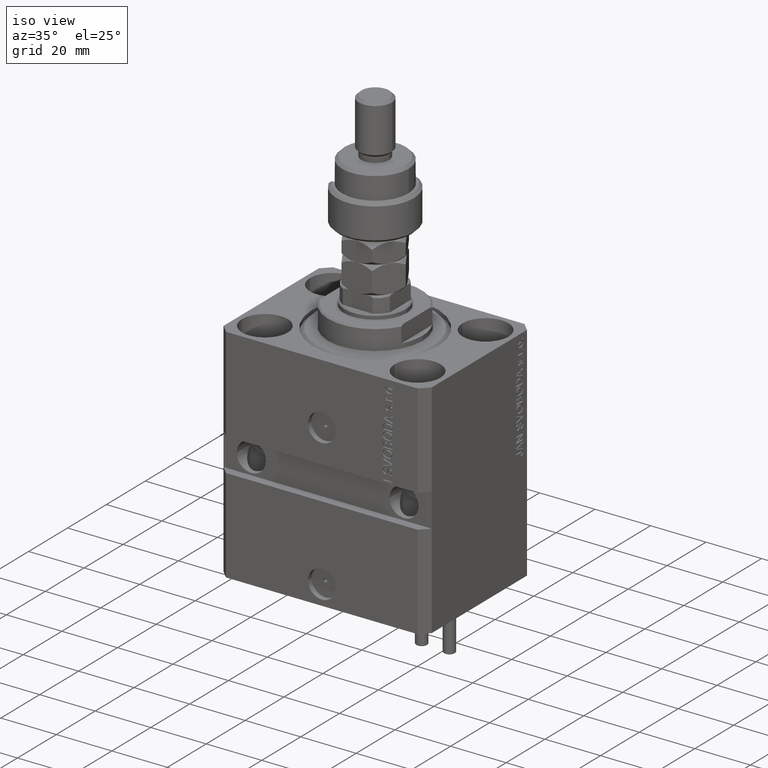
[diagram: clean part render]
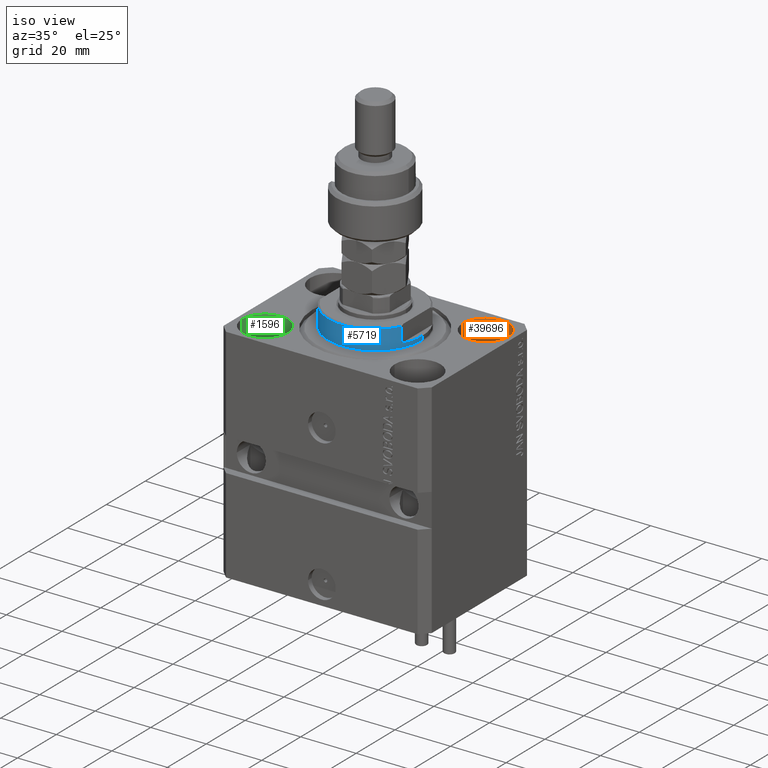
[diagram: same view with three faces highlighted in distinct colors, each labeled with its STEP entity id]
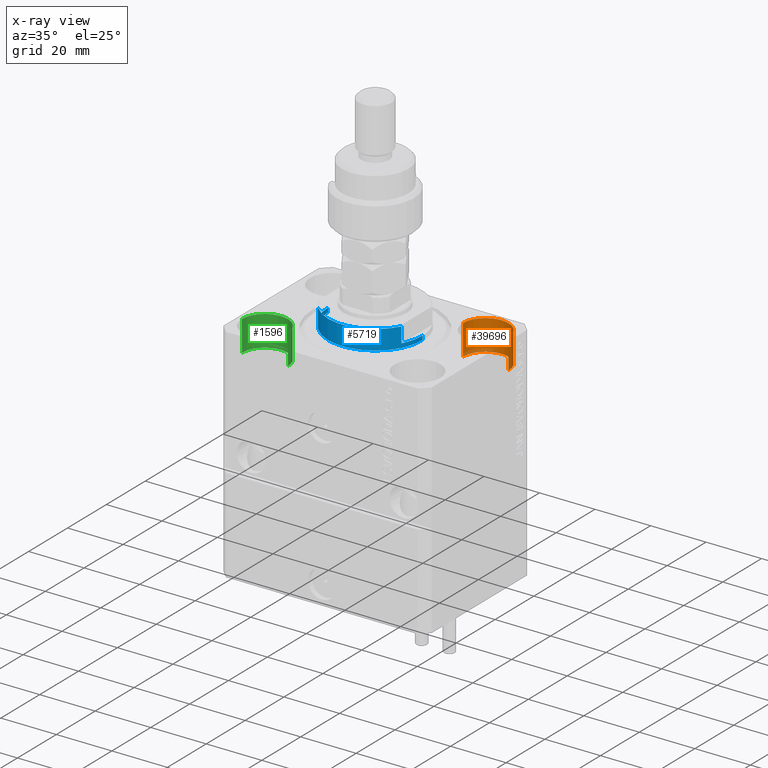
[diagram: x-ray of the same camera — body ghosted, the three highlighted faces saturated]
A machine part, iso view with three faces highlighted in distinct colors.
The next image is the same camera in x-ray (body ghosted, the three faces saturated) — at least one of them is partly hidden behind the body in this view.
Their STEP definitions:

[orange] entity #39696 — the highlighted cylindrical surface (edge-blend (fillet) strip) has radius 8.25 mm, axis along (0, 0, 1).
#718 = EDGE_LOOP ( 'NONE', ( #50475, #7062, #20345, #4627 ) ) ;
#2420 = CYLINDRICAL_SURFACE ( 'NONE', #33426, 8.249999999999992895 ) ;
#2682 = DIRECTION ( 'NONE',  ( 1.000000000000000000, 0.000000000000000000, 0.000000000000000000 ) ) ;
#3190 = CARTESIAN_POINT ( 'NONE',  ( 27.49999999999999645, 17.50000000000001066, 0.000000000000000000 ) ) ;
#3634 = DIRECTION ( 'NONE',  ( 0.000000000000000000, 0.000000000000000000, 1.000000000000000000 ) ) ;
#4627 = ORIENTED_EDGE ( 'NONE', *, *, #16613, .T. ) ;
#7006 = FACE_OUTER_BOUND ( 'NONE', #718, .T. ) ;
#7062 = ORIENTED_EDGE ( 'NONE', *, *, #35883, .F. ) ;
#7249 = DIRECTION ( 'NONE',  ( -0.000000000000000000, -0.000000000000000000, 1.000000000000000000 ) ) ;
#7807 = CARTESIAN_POINT ( 'NONE',  ( 35.74999999999999289, 17.50000000000001066, 0.000000000000000000 ) ) ;
#8169 = VERTEX_POINT ( 'NONE', #29914 ) ;
#9948 = VECTOR ( 'NONE', #14278, 1000.000000000000000 ) ;
#10452 = VERTEX_POINT ( 'NONE', #46071 ) ;
#11333 = DIRECTION ( 'NONE',  ( 0.000000000000000000, 0.000000000000000000, 1.000000000000000000 ) ) ;
#13891 = DIRECTION ( 'NONE',  ( -0.000000000000000000, -0.000000000000000000, 1.000000000000000000 ) ) ;
#14278 = DIRECTION ( 'NONE',  ( -0.000000000000000000, -0.000000000000000000, 1.000000000000000000 ) ) ;
#14828 = AXIS2_PLACEMENT_3D ( 'NONE', #3190, #11333, #2682 ) ;
#15845 = CARTESIAN_POINT ( 'NONE',  ( 27.49999999999999645, 17.50000000000001066, -11.00000000000000000 ) ) ;
#16613 = EDGE_CURVE ( 'NONE', #45840, #10452, #36819, .T. ) ;
#17269 = EDGE_CURVE ( 'NONE', #8169, #45840, #22161, .T. ) ;
#18598 = CARTESIAN_POINT ( 'NONE',  ( 35.74999999999999289, 17.50000000000001066, -11.00000000000000000 ) ) ;
#19422 = DIRECTION ( 'NONE',  ( 1.000000000000000000, 0.000000000000000000, 0.000000000000000000 ) ) ;
#20345 = ORIENTED_EDGE ( 'NONE', *, *, #17269, .T. ) ;
#22161 = LINE ( 'NONE', #18598, #9948 ) ;
#22535 = CARTESIAN_POINT ( 'NONE',  ( 27.49999999999999645, 17.50000000000001066, -11.00000000000000000 ) ) ;
#26358 = CARTESIAN_POINT ( 'NONE',  ( 19.25000000000000000, 17.50000000000001066, -11.00000000000000000 ) ) ;
#29914 = CARTESIAN_POINT ( 'NONE',  ( 35.74999999999999289, 17.50000000000001066, -11.00000000000000000 ) ) ;
#31083 = EDGE_CURVE ( 'NONE', #48682, #10452, #42200, .T. ) ;
#31741 = CIRCLE ( 'NONE', #37410, 8.249999999999992895 ) ;
#33426 = AXIS2_PLACEMENT_3D ( 'NONE', #22535, #13891, #38359 ) ;
#35883 = EDGE_CURVE ( 'NONE', #8169, #48682, #31741, .T. ) ;
#36819 = CIRCLE ( 'NONE', #14828, 8.249999999999992895 ) ;
#37410 = AXIS2_PLACEMENT_3D ( 'NONE', #15845, #3634, #19422 ) ;
#38359 = DIRECTION ( 'NONE',  ( 1.000000000000000000, 0.000000000000000000, 0.000000000000000000 ) ) ;
#39696 = ADVANCED_FACE ( 'NONE', ( #7006 ), #2420, .F. ) ;
#40444 = CARTESIAN_POINT ( 'NONE',  ( 19.25000000000000000, 17.50000000000001066, -11.00000000000000000 ) ) ;
#42200 = LINE ( 'NONE', #26358, #48675 ) ;
#45840 = VERTEX_POINT ( 'NONE', #7807 ) ;
#46071 = CARTESIAN_POINT ( 'NONE',  ( 19.25000000000000000, 17.50000000000001066, 0.000000000000000000 ) ) ;
#48675 = VECTOR ( 'NONE', #7249, 1000.000000000000000 ) ;
#48682 = VERTEX_POINT ( 'NONE', #40444 ) ;
#50475 = ORIENTED_EDGE ( 'NONE', *, *, #31083, .F. ) ;

[blue] entity #5719 — the highlighted cylindrical surface (partial cylindrical patch) has radius 17 mm, axis along (0, 0, -1).
#1089 = DIRECTION ( 'NONE',  ( -1.000000000000000000, 0.000000000000000000, 0.000000000000000000 ) ) ;
#2488 = ORIENTED_EDGE ( 'NONE', *, *, #11272, .T. ) ;
#2999 = CARTESIAN_POINT ( 'NONE',  ( 0.000000000000000000, 0.000000000000000000, -2.000000000000000000 ) ) ;
#3975 = CYLINDRICAL_SURFACE ( 'NONE', #27419, 17.00000000000000000 ) ;
#4229 = DIRECTION ( 'NONE',  ( 1.000000000000000000, 0.000000000000000000, 0.000000000000000000 ) ) ;
#4452 = AXIS2_PLACEMENT_3D ( 'NONE', #30780, #4507, #15221 ) ;
#4507 = DIRECTION ( 'NONE',  ( 0.000000000000000000, 0.000000000000000000, -1.000000000000000000 ) ) ;
#4588 = EDGE_CURVE ( 'NONE', #38288, #28261, #18823, .T. ) ;
#5719 = ADVANCED_FACE ( 'NONE', ( #26917 ), #3975, .T. ) ;
#7601 = DIRECTION ( 'NONE',  ( -0.000000000000000000, -0.000000000000000000, 1.000000000000000000 ) ) ;
#7724 = DIRECTION ( 'NONE',  ( 1.000000000000000000, 0.000000000000000000, 0.000000000000000000 ) ) ;
#7754 = LINE ( 'NONE', #11582, #41643 ) ;
#8466 = DIRECTION ( 'NONE',  ( 0.000000000000000000, 0.000000000000000000, 1.000000000000000000 ) ) ;
#8745 = DIRECTION ( 'NONE',  ( -0.000000000000000000, -0.000000000000000000, -1.000000000000000000 ) ) ;
#8865 = VERTEX_POINT ( 'NONE', #19356 ) ;
#9052 = ORIENTED_EDGE ( 'NONE', *, *, #4588, .T. ) ;
#11272 = EDGE_CURVE ( 'NONE', #19005, #8865, #28428, .T. ) ;
#11582 = CARTESIAN_POINT ( 'NONE',  ( -17.00000000000000000, 2.081899558550500280E-15, -8.000000000000000000 ) ) ;
#12469 = AXIS2_PLACEMENT_3D ( 'NONE', #39853, #8466, #1089 ) ;
#13215 = DIRECTION ( 'NONE',  ( 0.000000000000000000, 0.000000000000000000, -1.000000000000000000 ) ) ;
#14111 = EDGE_CURVE ( 'NONE', #28261, #43965, #38344, .T. ) ;
#14673 = ORIENTED_EDGE ( 'NONE', *, *, #23066, .F. ) ;
#14792 = AXIS2_PLACEMENT_3D ( 'NONE', #2999, #22087, #38173 ) ;
#14947 = DIRECTION ( 'NONE',  ( -0.000000000000000000, -0.000000000000000000, 1.000000000000000000 ) ) ;
#15221 = DIRECTION ( 'NONE',  ( -1.000000000000000000, 0.000000000000000000, 0.000000000000000000 ) ) ;
#16307 = EDGE_CURVE ( 'NONE', #38288, #20729, #41673, .T. ) ;
#16895 = CARTESIAN_POINT ( 'NONE',  ( 17.00000000000000000, 0.000000000000000000, -2.000000000000000000 ) ) ;
#18823 = LINE ( 'NONE', #34879, #19227 ) ;
#18967 = EDGE_CURVE ( 'NONE', #8865, #44576, #19766, .T. ) ;
#19005 = VERTEX_POINT ( 'NONE', #43689 ) ;
#19044 = CARTESIAN_POINT ( 'NONE',  ( -17.00000000000000000, 2.081899558550500280E-15, -2.000000000000000000 ) ) ;
#19227 = VECTOR ( 'NONE', #7601, 1000.000000000000000 ) ;
#19356 = CARTESIAN_POINT ( 'NONE',  ( -15.00000000000000000, -8.000000000000001776, -7.500000000000007105 ) ) ;
#19487 = ORIENTED_EDGE ( 'NONE', *, *, #41295, .F. ) ;
#19766 = CIRCLE ( 'NONE', #12469, 17.00000000000000000 ) ;
#20729 = VERTEX_POINT ( 'NONE', #27301 ) ;
#21800 = ORIENTED_EDGE ( 'NONE', *, *, #44542, .F. ) ;
#22087 = DIRECTION ( 'NONE',  ( 0.000000000000000000, 0.000000000000000000, -1.000000000000000000 ) ) ;
#22163 = VECTOR ( 'NONE', #13215, 1000.000000000000000 ) ;
#23066 = EDGE_CURVE ( 'NONE', #19005, #41734, #29712, .T. ) ;
#23293 = DIRECTION ( 'NONE',  ( -0.000000000000000000, -0.000000000000000000, 1.000000000000000000 ) ) ;
#23330 = CARTESIAN_POINT ( 'NONE',  ( 0.000000000000000000, 0.000000000000000000, -8.000000000000000000 ) ) ;
#23508 = VECTOR ( 'NONE', #42982, 1000.000000000000000 ) ;
#23646 = AXIS2_PLACEMENT_3D ( 'NONE', #24022, #8745, #7724 ) ;
#24022 = CARTESIAN_POINT ( 'NONE',  ( 0.000000000000000000, 0.000000000000000000, -0.5000000000000004441 ) ) ;
#24606 = CARTESIAN_POINT ( 'NONE',  ( -17.00000000000000000, 2.081899558550500280E-15, -0.5000000000000004441 ) ) ;
#24671 = CARTESIAN_POINT ( 'NONE',  ( 15.00000000000000000, -8.000000000000001776, -7.500000000000007105 ) ) ;
#24924 = CARTESIAN_POINT ( 'NONE',  ( 15.00000000000000000, -8.000000000000001776, -8.000000000000000000 ) ) ;
#26917 = FACE_OUTER_BOUND ( 'NONE', #30245, .T. ) ;
#27285 = ORIENTED_EDGE ( 'NONE', *, *, #18967, .T. ) ;
#27301 = CARTESIAN_POINT ( 'NONE',  ( 14.99999999999999645, -8.000000000000003553, -2.000000000000000000 ) ) ;
#27419 = AXIS2_PLACEMENT_3D ( 'NONE', #23330, #14947, #4229 ) ;
#28261 = VERTEX_POINT ( 'NONE', #49013 ) ;
#28428 = LINE ( 'NONE', #35320, #23508 ) ;
#29712 = CIRCLE ( 'NONE', #4452, 17.00000000000000000 ) ;
#30245 = EDGE_LOOP ( 'NONE', ( #19487, #14673, #2488, #27285, #21800, #32207, #9052, #40013 ) ) ;
#30780 = CARTESIAN_POINT ( 'NONE',  ( 0.000000000000000000, 0.000000000000000000, -2.000000000000000000 ) ) ;
#32207 = ORIENTED_EDGE ( 'NONE', *, *, #16307, .F. ) ;
#34879 = CARTESIAN_POINT ( 'NONE',  ( 17.00000000000000000, 0.000000000000000000, -8.000000000000000000 ) ) ;
#35320 = CARTESIAN_POINT ( 'NONE',  ( -15.00000000000000000, -8.000000000000001776, -8.000000000000000000 ) ) ;
#38173 = DIRECTION ( 'NONE',  ( -1.000000000000000000, 0.000000000000000000, 0.000000000000000000 ) ) ;
#38288 = VERTEX_POINT ( 'NONE', #16895 ) ;
#38344 = CIRCLE ( 'NONE', #23646, 17.00000000000000000 ) ;
#39853 = CARTESIAN_POINT ( 'NONE',  ( 0.000000000000000000, 0.000000000000000000, -7.500000000000007105 ) ) ;
#40013 = ORIENTED_EDGE ( 'NONE', *, *, #14111, .T. ) ;
#41295 = EDGE_CURVE ( 'NONE', #41734, #43965, #7754, .T. ) ;
#41643 = VECTOR ( 'NONE', #23293, 1000.000000000000000 ) ;
#41673 = CIRCLE ( 'NONE', #14792, 17.00000000000000000 ) ;
#41734 = VERTEX_POINT ( 'NONE', #19044 ) ;
#42982 = DIRECTION ( 'NONE',  ( 0.000000000000000000, 0.000000000000000000, -1.000000000000000000 ) ) ;
#43689 = CARTESIAN_POINT ( 'NONE',  ( -14.99999999999999645, -8.000000000000003553, -2.000000000000000000 ) ) ;
#43965 = VERTEX_POINT ( 'NONE', #24606 ) ;
#44094 = LINE ( 'NONE', #24924, #22163 ) ;
#44542 = EDGE_CURVE ( 'NONE', #20729, #44576, #44094, .T. ) ;
#44576 = VERTEX_POINT ( 'NONE', #24671 ) ;
#49013 = CARTESIAN_POINT ( 'NONE',  ( 17.00000000000000000, 0.000000000000000000, -0.5000000000000004441 ) ) ;

[green] entity #1596 — the highlighted cylindrical surface (edge-blend (fillet) strip) has radius 8.25 mm, axis along (0, 0, 1).
#144 = CARTESIAN_POINT ( 'NONE',  ( -35.75000000000000711, -17.50000000000000000, -11.00000000000000000 ) ) ;
#1434 = EDGE_CURVE ( 'NONE', #14818, #22909, #20883, .T. ) ;
#1596 = ADVANCED_FACE ( 'NONE', ( #48332 ), #10031, .F. ) ;
#4863 = VERTEX_POINT ( 'NONE', #144 ) ;
#4959 = DIRECTION ( 'NONE',  ( 1.000000000000000000, 0.000000000000000000, 0.000000000000000000 ) ) ;
#5194 = CARTESIAN_POINT ( 'NONE',  ( -35.75000000000000711, -17.50000000000000000, -11.00000000000000000 ) ) ;
#5504 = CARTESIAN_POINT ( 'NONE',  ( -19.25000000000000355, -17.50000000000000000, -11.00000000000000000 ) ) ;
#6797 = CARTESIAN_POINT ( 'NONE',  ( -27.50000000000000355, -17.50000000000000000, -11.00000000000000000 ) ) ;
#7405 = CIRCLE ( 'NONE', #49817, 8.250000000000000000 ) ;
#8703 = CARTESIAN_POINT ( 'NONE',  ( -19.25000000000000355, -17.50000000000000000, -11.00000000000000000 ) ) ;
#9038 = DIRECTION ( 'NONE',  ( -0.000000000000000000, -0.000000000000000000, 1.000000000000000000 ) ) ;
#10031 = CYLINDRICAL_SURFACE ( 'NONE', #15994, 8.250000000000000000 ) ;
#10371 = DIRECTION ( 'NONE',  ( 1.000000000000000000, 0.000000000000000000, 0.000000000000000000 ) ) ;
#12591 = DIRECTION ( 'NONE',  ( -0.000000000000000000, -0.000000000000000000, 1.000000000000000000 ) ) ;
#14492 = EDGE_CURVE ( 'NONE', #44017, #4863, #7405, .T. ) ;
#14669 = CARTESIAN_POINT ( 'NONE',  ( -27.50000000000000355, -17.50000000000000000, 0.000000000000000000 ) ) ;
#14818 = VERTEX_POINT ( 'NONE', #43383 ) ;
#15994 = AXIS2_PLACEMENT_3D ( 'NONE', #32252, #9038, #24573 ) ;
#16071 = ORIENTED_EDGE ( 'NONE', *, *, #14492, .F. ) ;
#17992 = ORIENTED_EDGE ( 'NONE', *, *, #1434, .T. ) ;
#18510 = DIRECTION ( 'NONE',  ( 0.000000000000000000, 0.000000000000000000, 1.000000000000000000 ) ) ;
#20150 = ORIENTED_EDGE ( 'NONE', *, *, #47452, .T. ) ;
#20883 = CIRCLE ( 'NONE', #35560, 8.250000000000000000 ) ;
#22909 = VERTEX_POINT ( 'NONE', #45106 ) ;
#24243 = DIRECTION ( 'NONE',  ( -0.000000000000000000, -0.000000000000000000, 1.000000000000000000 ) ) ;
#24573 = DIRECTION ( 'NONE',  ( 1.000000000000000000, 0.000000000000000000, 0.000000000000000000 ) ) ;
#25299 = VECTOR ( 'NONE', #12591, 1000.000000000000000 ) ;
#28889 = LINE ( 'NONE', #5194, #25299 ) ;
#32252 = CARTESIAN_POINT ( 'NONE',  ( -27.50000000000000355, -17.50000000000000000, -11.00000000000000000 ) ) ;
#35560 = AXIS2_PLACEMENT_3D ( 'NONE', #14669, #45815, #4959 ) ;
#39933 = EDGE_CURVE ( 'NONE', #4863, #22909, #28889, .T. ) ;
#42539 = VECTOR ( 'NONE', #24243, 1000.000000000000000 ) ;
#43383 = CARTESIAN_POINT ( 'NONE',  ( -19.25000000000000355, -17.50000000000000000, 0.000000000000000000 ) ) ;
#43559 = EDGE_LOOP ( 'NONE', ( #48431, #16071, #20150, #17992 ) ) ;
#44017 = VERTEX_POINT ( 'NONE', #5504 ) ;
#45106 = CARTESIAN_POINT ( 'NONE',  ( -35.75000000000000711, -17.50000000000000000, 0.000000000000000000 ) ) ;
#45815 = DIRECTION ( 'NONE',  ( 0.000000000000000000, 0.000000000000000000, 1.000000000000000000 ) ) ;
#47452 = EDGE_CURVE ( 'NONE', #44017, #14818, #48000, .T. ) ;
#48000 = LINE ( 'NONE', #8703, #42539 ) ;
#48332 = FACE_OUTER_BOUND ( 'NONE', #43559, .T. ) ;
#48431 = ORIENTED_EDGE ( 'NONE', *, *, #39933, .F. ) ;
#49817 = AXIS2_PLACEMENT_3D ( 'NONE', #6797, #18510, #10371 ) ;